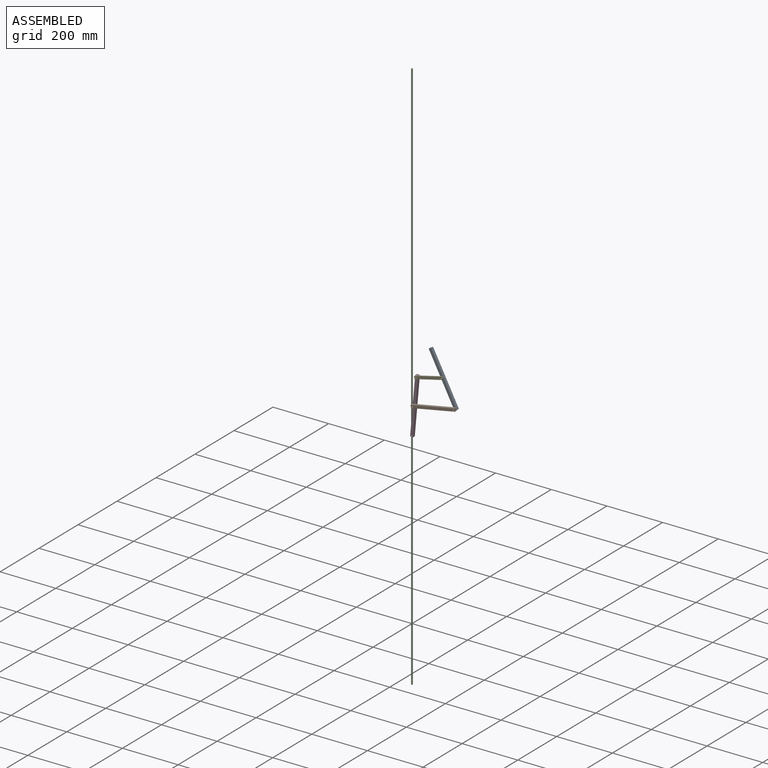
[diagram: assembled view]
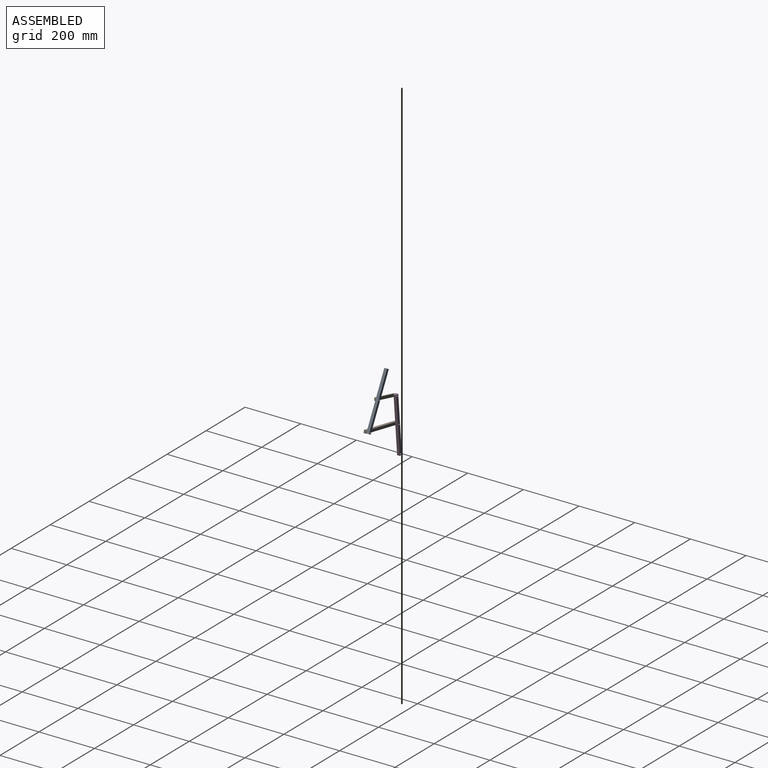
[diagram: assembled view, second angle]
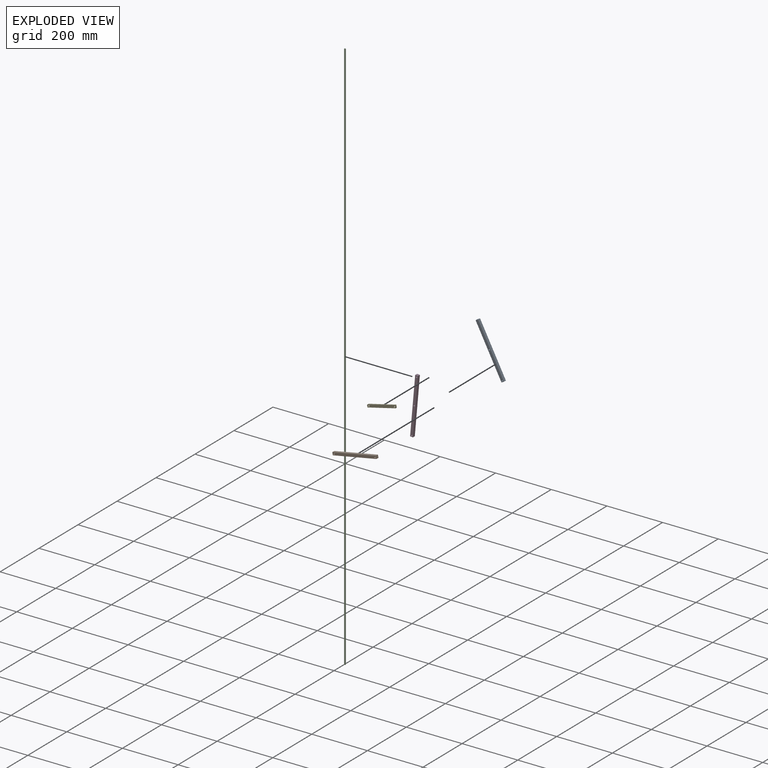
[diagram: exploded view]
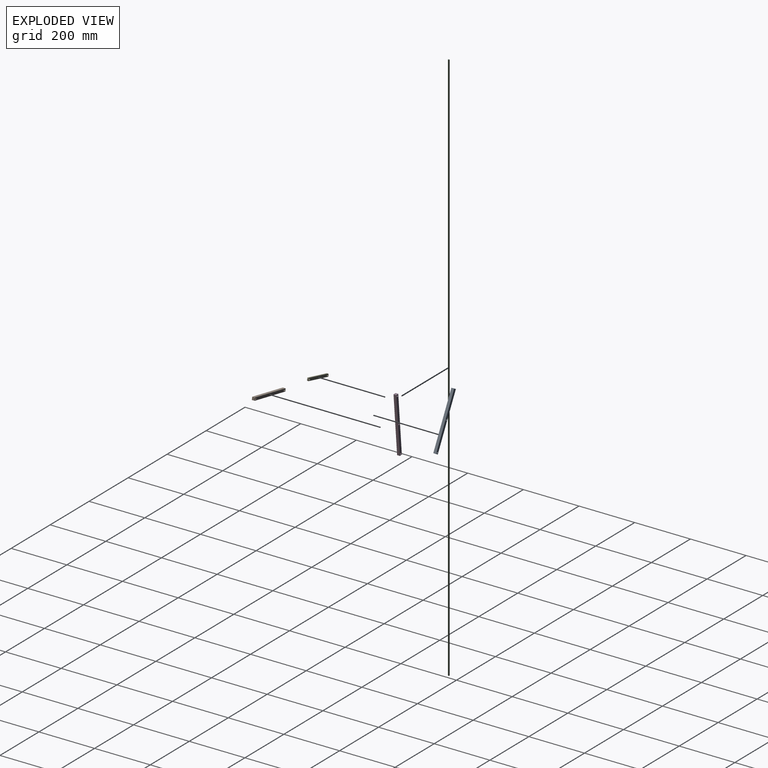
[diagram: exploded view, second angle]
ASSEMBLY  parts=5 mates=4
PART A: 9 faces, bbox 101.7x10x181.8 mm
  f0: plane 10x8.86mm, normal (-0.46,0,0.89), area 100mm2, adj f1,f5,f7,f8
  f1: plane 177.15x92.84mm, normal (-0.89,0,-0.46), area 2000mm2, adj f0,f2,f7,f8
  f2: plane 10x4.45mm, normal (0.46,0,-0.89), area 50.2mm2, adj f1,f3,f7,f8
  f3: plane 10x4.39mm, normal (0.47,0,-0.88), area 49.8mm2, adj f2,f5,f7,f8
  f4: cylinder r=3mm len=10mm, axis (0,1,0), area 188.5mm2, adj f7,f8
  f5: plane 177.11x92.82mm, normal (0.89,0,0.46), area 1999.6mm2, adj f0,f3,f7,f8
  f6: cylinder r=3mm len=10mm, axis (0,1,0), area 188.5mm2, adj f7,f8
  f7: plane 181.79x101.68mm, normal (0,-1,0), area 1943.3mm2, adj f0,f1,f2,f3,f4,f5,f6
  f8: plane 181.79x101.68mm, normal (0,1,0), area 1943.3mm2, adj f0,f1,f2,f3,f4,f5,f6
PART B: 9 faces, bbox 145.8x10x84.3 mm
  f0: plane 10x4.43mm, normal (0.88,0,0.47), area 50.2mm2, adj f1,f5,f7,f8
  f1: plane 141.08x75.47mm, normal (-0.47,0,0.88), area 1600mm2, adj f0,f2,f7,f8
  f2: plane 10x8.82mm, normal (-0.88,0,-0.47), area 100mm2, adj f1,f3,f7,f8
  f3: plane 141.05x75.45mm, normal (0.47,0,-0.88), area 1599.6mm2, adj f2,f5,f7,f8
  f4: cylinder r=3mm len=10mm, axis (0,1,0), area 188.5mm2, adj f7,f8
  f5: plane 10x4.41mm, normal (0.89,0,0.46), area 49.8mm2, adj f0,f3,f7,f8
  f6: cylinder r=3mm len=10mm, axis (0,1,0), area 188.5mm2, adj f7,f8
  f7: plane 145.76x84.29mm, normal (0,-1,0), area 1543.3mm2, adj f0,f1,f2,f3,f4,f5,f6
  f8: plane 145.76x84.29mm, normal (0,1,0), area 1543.3mm2, adj f0,f1,f2,f3,f4,f5,f6
PART C: 3 faces, bbox 5x5x2000 mm
  f0: cylinder r=2.5mm len=2000mm, axis (0,0,1), area 31415.9mm2, adj f1,f2
  f1: plane 5x5mm, normal (0,0,-1), area 19.6mm2, adj f0
  f2: plane 5x5mm, normal (0,0,1), area 19.6mm2, adj f0
PART D: 9 faces, bbox 47.5x10x203.3 mm
  f0: plane 201.51x37.68mm, normal (0.98,0,-0.18), area 2050mm2, adj f1,f5,f7,f8
  f1: plane 10x9.83mm, normal (0.18,0,0.98), area 100mm2, adj f0,f2,f7,f8
  f2: plane 201.51x37.68mm, normal (-0.98,0,0.18), area 2050mm2, adj f1,f5,f7,f8
  f3: cylinder r=3mm len=10mm, axis (0,1,0), area 188.5mm2, adj f7,f8
  f4: cylinder r=3mm len=10mm, axis (0,1,0), area 188.5mm2, adj f7,f8
  f5: plane 10x9.83mm, normal (-0.18,0,-0.98), area 100mm2, adj f0,f2,f7,f8
  f6: cylinder r=3mm len=10mm, axis (0,1,0), area 188.5mm2, adj f7,f8
  f7: plane 203.35x47.51mm, normal (0,-1,0), area 1965.2mm2, adj f0,f1,f2,f3,f4,f5,f6
  f8: plane 203.35x47.51mm, normal (0,1,0), area 1965.2mm2, adj f0,f1,f2,f3,f4,f5,f6
PART E: 10 faces, bbox 79.9x5x80.1 mm
  f0: plane 73.13x70.53mm, normal (-0.69,0,0.72), area 508mm2, adj f1,f5,f8,f9
  f1: plane 5x4.11mm, normal (-0.98,0,0.18), area 20.9mm2, adj f0,f2,f8,f9
  f2: plane 5.46x5.26mm, normal (-0.72,0,-0.69), area 37.9mm2, adj f1,f3,f8,f9
  f3: plane 74.68x72.02mm, normal (0.69,0,-0.72), area 518.7mm2, adj f2,f4,f8,f9
  f4: plane 5x3.95mm, normal (0.89,0,0.46), area 22.3mm2, adj f3,f5,f8,f9
  f5: plane 5x4.11mm, normal (0.72,0,0.69), area 28.6mm2, adj f0,f4,f8,f9
  f6: cylinder r=3mm len=6mm, axis (0,1,0), area 94.2mm2, adj f8,f9
  f7: cylinder r=3mm len=6mm, axis (0,1,0), area 94.2mm2, adj f8,f9
  f8: plane 80.09x79.94mm, normal (0,-1,0), area 986.6mm2, adj f0,f1,f2,f3,f4,f5,f6,f7
  f9: plane 80.09x79.94mm, normal (0,1,0), area 986.6mm2, adj f0,f1,f2,f3,f4,f5,f6,f7
PLACE A at identity fixed
PLACE B rot(axis=(0,1,0),17.3deg) t=(13.02,-10,71.81)mm
PLACE C t=(-446.65,106.95,1051.41)mm fixed
PLACE D rot(axis=(0,-1,0),5.4deg) t=(-21.94,0,31.88)mm
PLACE E rot(axis=(0,1,0),30.5deg) t=(-14.45,-10,110.67)mm
MATE revolute A.f4 <-> E.f6  axis (0,-1,0) through (195.56,-10,81.81)mm
MATE revolute B.f6 <-> D.f4  axis (0,1,0) through (94.64,-10,-34.88)mm
MATE revolute D.f6 <-> E.f7  axis (0,-1,0) through (103.16,-10,59.73)mm
MATE revolute A.f6 <-> B.f4  axis (0,-1,0) through (241.98,-10,-6.77)mm
